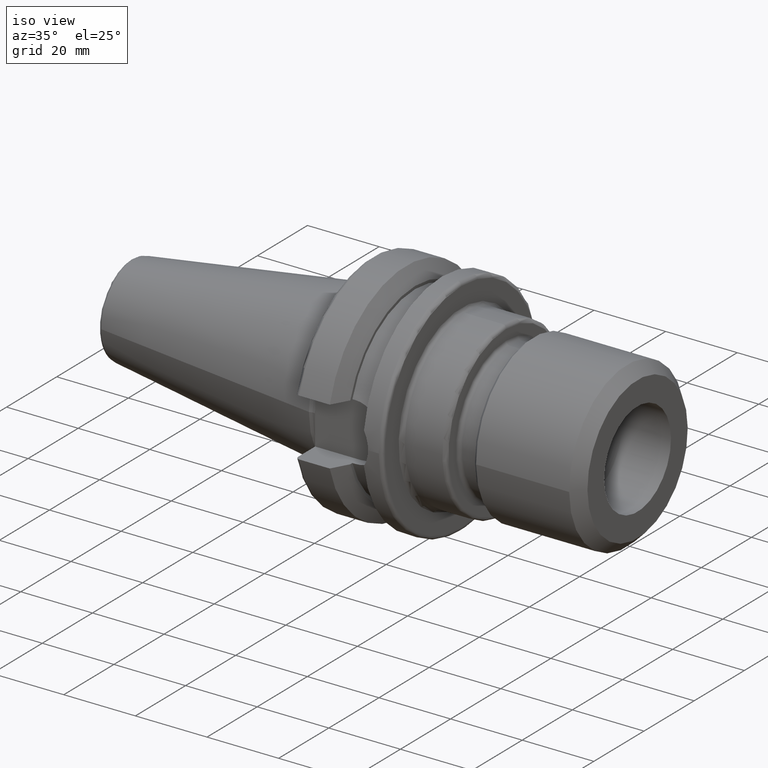
[diagram: clean part render]
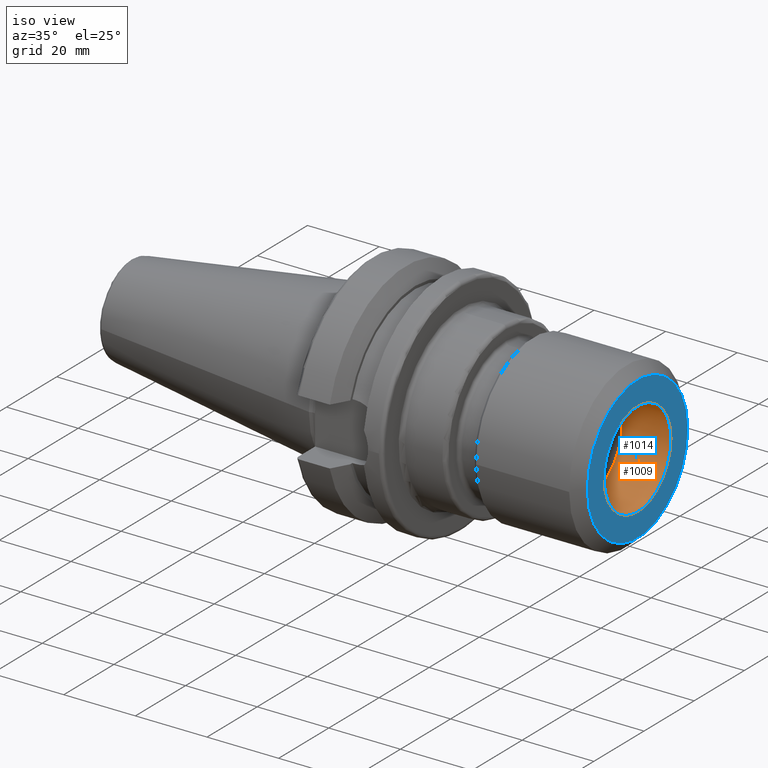
[diagram: same view with the hole feature highlighted: cylindrical wall and planar end face, labeled with their STEP entity ids]
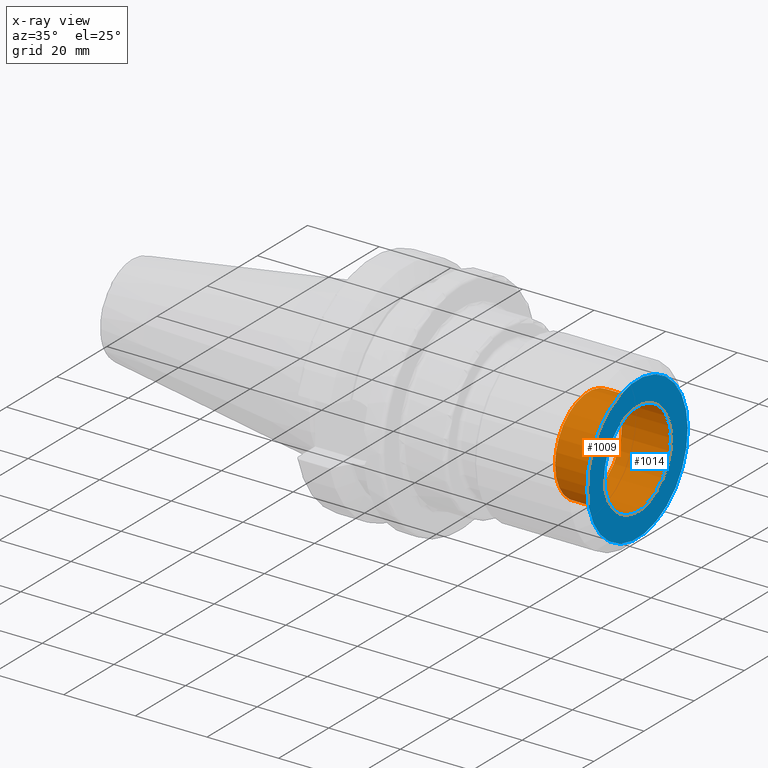
[diagram: x-ray of the same camera — body ghosted, the hole faces saturated]
A machine part, iso view. The highlighted faces form one hole feature of diameter 26.67 mm: the cylindrical wall (entity #1009, orange) and its adjacent planar end face (entity #1014, blue) — they share a circular edge in the B-rep.
The next image is the same camera in x-ray (body ghosted, the hole faces saturated) — the bore reads through the body.
Wall:
#145=LINE('',#1932,#196);
#196=VECTOR('',#1517,13.335);
#216=CYLINDRICAL_SURFACE('',#1209,13.335);
#272=FACE_OUTER_BOUND('',#341,.T.);
#341=EDGE_LOOP('',(#917,#918,#919,#920));
#415=CIRCLE('',#1210,13.335);
#416=CIRCLE('',#1211,13.335);
#508=VERTEX_POINT('',#1929);
#509=VERTEX_POINT('',#1931);
#646=EDGE_CURVE('',#508,#508,#415,.T.);
#647=EDGE_CURVE('',#508,#509,#145,.T.);
#648=EDGE_CURVE('',#509,#509,#416,.T.);
#917=ORIENTED_EDGE('',*,*,#646,.F.);
#918=ORIENTED_EDGE('',*,*,#647,.T.);
#919=ORIENTED_EDGE('',*,*,#648,.T.);
#920=ORIENTED_EDGE('',*,*,#647,.F.);
#1009=ADVANCED_FACE('',(#272),#216,.F.);
#1209=AXIS2_PLACEMENT_3D('',#1928,#1513,#1514);
#1210=AXIS2_PLACEMENT_3D('',#1930,#1515,#1516);
#1211=AXIS2_PLACEMENT_3D('',#1933,#1518,#1519);
#1513=DIRECTION('center_axis',(-1.,0.,0.));
#1514=DIRECTION('ref_axis',(0.,1.,0.));
#1515=DIRECTION('center_axis',(-1.,0.,0.));
#1516=DIRECTION('ref_axis',(0.,1.,0.));
#1517=DIRECTION('',(-1.,0.,0.));
#1518=DIRECTION('center_axis',(-1.,0.,0.));
#1519=DIRECTION('ref_axis',(0.,0.,1.));
#1928=CARTESIAN_POINT('Origin',(23.15,0.,0.));
#1929=CARTESIAN_POINT('',(30.,-13.335,1.633066506663E-15));
#1930=CARTESIAN_POINT('Origin',(30.,0.,0.));
#1931=CARTESIAN_POINT('',(16.3,-13.335,1.633066506663E-15));
#1932=CARTESIAN_POINT('',(23.15,-13.335,1.633066506663E-15));
#1933=CARTESIAN_POINT('Origin',(16.3,0.,0.));
End face:
#76=FACE_BOUND('',#348,.T.);
#97=PLANE('',#1223);
#277=FACE_OUTER_BOUND('',#347,.T.);
#347=EDGE_LOOP('',(#938));
#348=EDGE_LOOP('',(#939));
#415=CIRCLE('',#1210,13.335);
#419=CIRCLE('',#1217,20.);
#508=VERTEX_POINT('',#1929);
#512=VERTEX_POINT('',#1942);
#646=EDGE_CURVE('',#508,#508,#415,.T.);
#652=EDGE_CURVE('',#512,#512,#419,.T.);
#938=ORIENTED_EDGE('',*,*,#652,.F.);
#939=ORIENTED_EDGE('',*,*,#646,.T.);
#1014=ADVANCED_FACE('',(#277,#76),#97,.T.);
#1210=AXIS2_PLACEMENT_3D('',#1930,#1515,#1516);
#1217=AXIS2_PLACEMENT_3D('',#1943,#1531,#1532);
#1223=AXIS2_PLACEMENT_3D('',#1955,#1545,#1546);
#1515=DIRECTION('center_axis',(-1.,0.,0.));
#1516=DIRECTION('ref_axis',(0.,1.,0.));
#1531=DIRECTION('center_axis',(-1.,0.,0.));
#1532=DIRECTION('ref_axis',(0.,-1.,0.));
#1545=DIRECTION('center_axis',(1.,0.,0.));
#1546=DIRECTION('ref_axis',(0.,0.,-1.));
#1929=CARTESIAN_POINT('',(30.,-13.335,1.633066506663E-15));
#1930=CARTESIAN_POINT('Origin',(30.,0.,0.));
#1942=CARTESIAN_POINT('',(30.,20.,-2.44929359829471E-15));
#1943=CARTESIAN_POINT('Origin',(30.,0.,0.));
#1955=CARTESIAN_POINT('Origin',(30.,0.,0.));